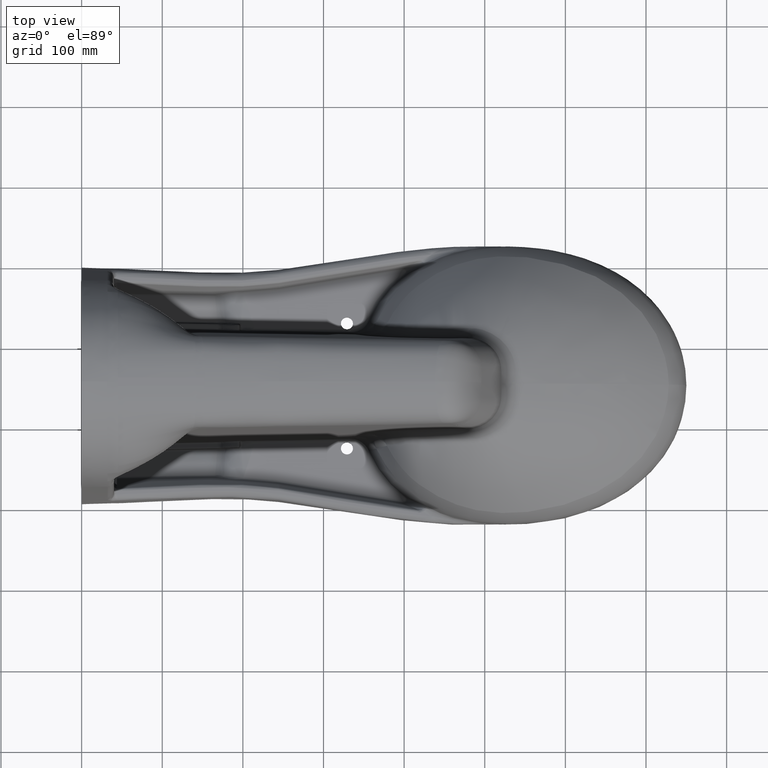
[diagram: clean part render]
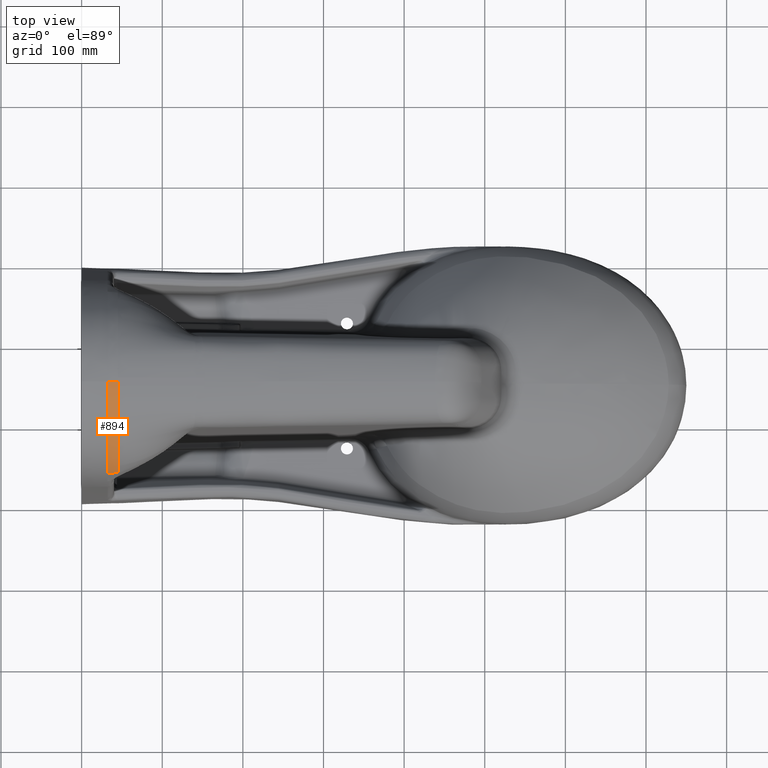
[diagram: same view with one face highlighted and labeled with its STEP entity id]
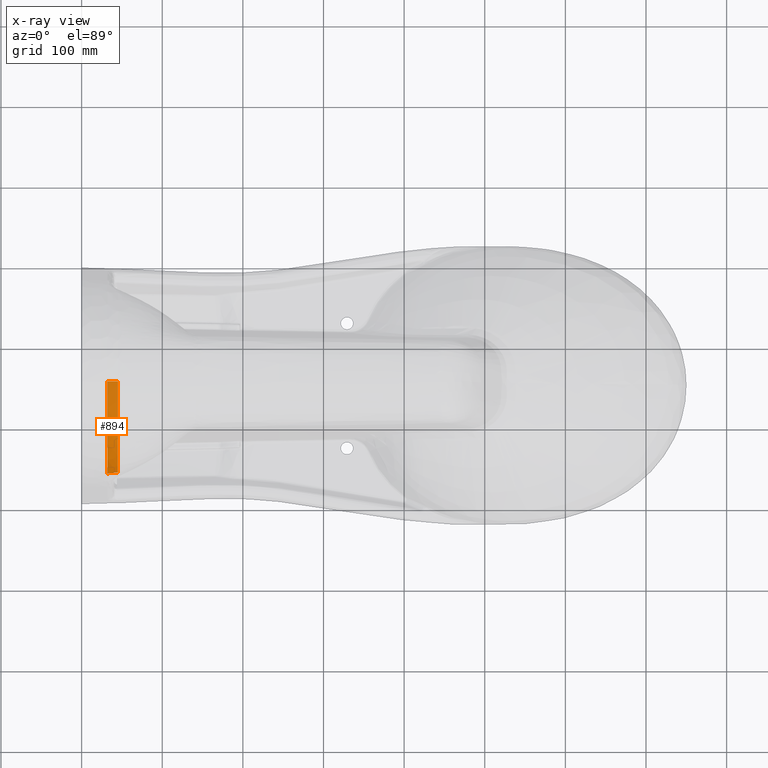
[diagram: x-ray of the same camera — body ghosted, the highlighted face saturated]
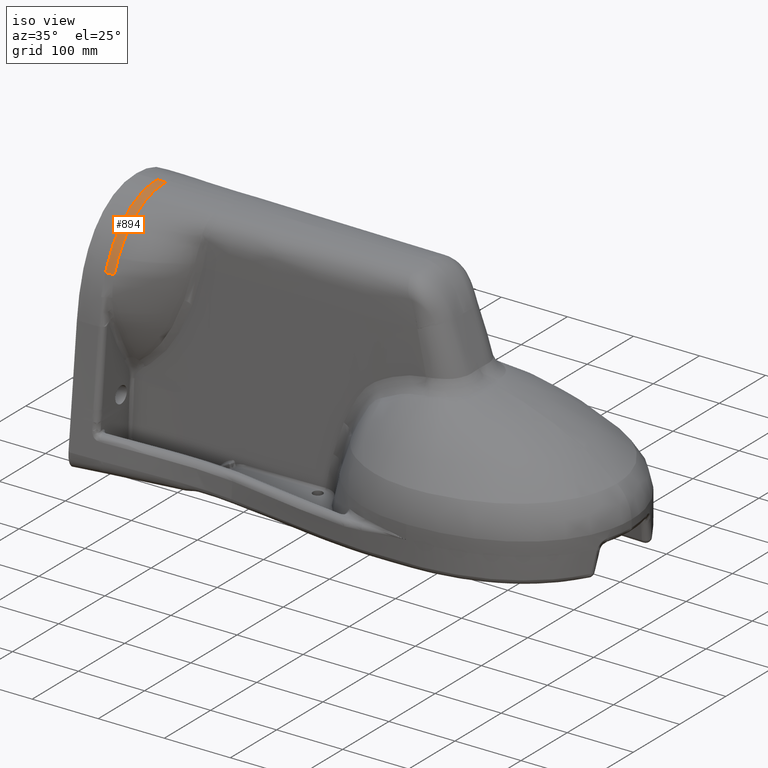
[diagram: same view with one face highlighted and labeled with its STEP entity id]
A machine part, top view. The second image highlights one B-rep face of the part: STEP entity #894.
The next image is the same camera in x-ray: the body ghosted, the highlighted face saturated — about 0% of this face is hidden behind the body in this view.
A second angle (iso view) of the same face is appended — the face is thin or edge-on in the first view.
In plain terms, the highlighted face is a freeform B-spline surface patch.
Its self-contained STEP definition (entity closure, byte-faithful):
#894=ADVANCED_FACE('',(#1476),#1150,.T.);
#1150=B_SPLINE_SURFACE_WITH_KNOTS('',3,3,((#41823,#41824,#41825,#41826,
#41827),(#41828,#41829,#41830,#41831,#41832),(#41833,#41834,#41835,#41836,
#41837),(#41838,#41839,#41840,#41841,#41842),(#41843,#41844,#41845,#41846,
#41847),(#41848,#41849,#41850,#41851,#41852),(#41853,#41854,#41855,#41856,
#41857),(#41858,#41859,#41860,#41861,#41862),(#41863,#41864,#41865,#41866,
#41867),(#41868,#41869,#41870,#41871,#41872),(#41873,#41874,#41875,#41876,
#41877),(#41878,#41879,#41880,#41881,#41882),(#41883,#41884,#41885,#41886,
#41887),(#41888,#41889,#41890,#41891,#41892),(#41893,#41894,#41895,#41896,
#41897),(#41898,#41899,#41900,#41901,#41902),(#41903,#41904,#41905,#41906,
#41907),(#41908,#41909,#41910,#41911,#41912),(#41913,#41914,#41915,#41916,
#41917),(#41918,#41919,#41920,#41921,#41922),(#41923,#41924,#41925,#41926,
#41927)),.UNSPECIFIED.,.F.,.F.,.F.,(4,1,1,1,1,1,1,1,1,1,1,1,1,1,1,1,1,1,
4),(4,1,4),(0.,0.03125,0.046875,0.0625,0.125,0.1875,0.25,0.3125,0.375,0.5,
0.5625,0.625,0.6875,0.75,0.8125,0.875,0.9375,0.96875,1.),(0.,0.5,1.),
 .UNSPECIFIED.);
#1476=FACE_OUTER_BOUND('',#1901,.T.);
#1901=EDGE_LOOP('',(#3408,#3409,#3410,#3411,#3412));
#3408=ORIENTED_EDGE('',*,*,#5442,.F.);
#3409=ORIENTED_EDGE('',*,*,#4764,.T.);
#3410=ORIENTED_EDGE('',*,*,#5443,.F.);
#3411=ORIENTED_EDGE('',*,*,#5444,.T.);
#3412=ORIENTED_EDGE('',*,*,#5115,.T.);
#4150=VERTEX_POINT('',#7491);
#4152=VERTEX_POINT('',#7504);
#4386=VERTEX_POINT('',#20594);
#4387=VERTEX_POINT('',#20600);
#4561=VERTEX_POINT('',#41817);
#4764=EDGE_CURVE('',#4150,#4152,#5791,.T.);
#5115=EDGE_CURVE('',#4387,#4386,#6055,.T.);
#5442=EDGE_CURVE('',#4150,#4386,#6274,.T.);
#5443=EDGE_CURVE('',#4561,#4152,#6275,.T.);
#5444=EDGE_CURVE('',#4561,#4387,#6276,.T.);
#5791=B_SPLINE_CURVE_WITH_KNOTS('',3,(#7505,#7506,#7507,#7508,#7509),
 .UNSPECIFIED.,.F.,.F.,(4,1,4),(0.,0.5,1.),.UNSPECIFIED.);
#6055=B_SPLINE_CURVE_WITH_KNOTS('',3,(#20595,#20596,#20597,#20598,#20599),
 .UNSPECIFIED.,.F.,.F.,(4,1,4),(0.,0.5,1.),.UNSPECIFIED.);
#6274=B_SPLINE_CURVE_WITH_KNOTS('',3,(#41757,#41758,#41759,#41760,#41761,
#41762,#41763,#41764,#41765,#41766,#41767,#41768,#41769,#41770),
 .UNSPECIFIED.,.F.,.F.,(4,1,1,1,1,1,1,1,1,1,1,4),(0.,0.0846163404566304,
0.176154706410967,0.267693072365304,0.359231438319641,0.450769804273978,
0.542308170228315,0.633846536182652,0.725384902136989,0.816923268091326,
0.908461634045663,1.),.UNSPECIFIED.);
#6275=B_SPLINE_CURVE_WITH_KNOTS('',3,(#41771,#41772,#41773,#41774,#41775,
#41776,#41777,#41778,#41779,#41780,#41781,#41782,#41783,#41784,#41785,#41786,
#41787,#41788,#41789,#41790,#41791,#41792,#41793,#41794,#41795,#41796,#41797,
#41798,#41799,#41800,#41801,#41802,#41803,#41804,#41805,#41806,#41807,#41808,
#41809,#41810,#41811,#41812,#41813,#41814,#41815,#41816),.UNSPECIFIED.,
 .F.,.F.,(4,2,2,2,2,2,2,2,2,2,1,1,2,2,2,2,2,2,2,1,1,2,2,2,4),(0.,0.124999999999881,
0.187499999999821,0.218749999999791,0.234374999999776,0.249999999999761,
0.37499999999964,0.437499999999579,0.468749999999548,0.484374999999534,
0.492187499999526,0.496093749999521,0.498046874999519,0.499999999999517,
0.624999999999616,0.687499999999665,0.718749999999689,0.734374999999702,
0.742187499999708,0.746093749999711,0.748046874999712,0.749023437499712,
0.749999999999712,0.874999999999856,1.),.UNSPECIFIED.);
#6276=B_SPLINE_CURVE_WITH_KNOTS('',3,(#41818,#41819,#41820,#41821,#41822),
 .UNSPECIFIED.,.F.,.F.,(4,1,4),(0.,0.065085000679331,1.),.UNSPECIFIED.);
#7491=CARTESIAN_POINT('',(32.0711409136262,40.6991290688186,254.616242603027));
#7504=CARTESIAN_POINT('',(45.0002164847219,41.9455331561482,254.61593767935));
#7505=CARTESIAN_POINT('',(32.0711405541962,40.6988021979625,254.616368293161));
#7506=CARTESIAN_POINT('',(34.2399878995843,40.7214590894807,254.616369769291));
#7507=CARTESIAN_POINT('',(38.5785005924418,40.8661706958779,254.616224616983));
#7508=CARTESIAN_POINT('',(42.8844870985646,41.4680564288696,254.616069426711));
#7509=CARTESIAN_POINT('',(45.0003552028506,41.9451697982852,254.616060864872));
#20594=CARTESIAN_POINT('',(32.0711392233909,153.525,338.620104444878));
#20595=CARTESIAN_POINT('',(44.9985435816259,153.525,338.620104444878));
#20596=CARTESIAN_POINT('',(42.8439761885891,153.525,338.620105853771));
#20597=CARTESIAN_POINT('',(38.5348414025082,153.525,338.620103740432));
#20598=CARTESIAN_POINT('',(34.2257066164281,153.525,338.620104444878));
#20599=CARTESIAN_POINT('',(32.0711392233909,153.525,338.620104444878));
#20600=CARTESIAN_POINT('',(44.9985435816259,153.525,338.620104444878));
#41757=CARTESIAN_POINT('',(32.0711397441766,40.6994559484828,254.616116915158));
#41758=CARTESIAN_POINT('',(32.0711397295455,42.2220162009878,258.575789393538));
#41759=CARTESIAN_POINT('',(32.0711396990827,45.6718731273508,266.711771698158));
#41760=CARTESIAN_POINT('',(32.0711396527762,51.8882292941484,278.620980744486));
#41761=CARTESIAN_POINT('',(32.071139605253,59.3799702337231,290.19163692479));
#41762=CARTESIAN_POINT('',(32.0711395576998,68.007508932114,300.945795690077));
#41763=CARTESIAN_POINT('',(32.071139510106,77.764033306794,310.690938170638));
#41764=CARTESIAN_POINT('',(32.0711394624659,88.5776580886322,319.251429769445));
#41765=CARTESIAN_POINT('',(32.0711394147737,100.347932584325,326.444585382449));
#41766=CARTESIAN_POINT('',(32.0711393670238,112.931060316458,332.101232857567));
#41767=CARTESIAN_POINT('',(32.0711393192122,126.138237803026,336.091392273029));
#41768=CARTESIAN_POINT('',(32.0711392713369,139.748009792469,338.349975834694));
#41769=CARTESIAN_POINT('',(32.0711392393783,148.936611215324,338.711052031488));
#41770=CARTESIAN_POINT('',(32.0711392233891,153.525,338.620104444878));
#41771=CARTESIAN_POINT('',(44.9985435816502,148.524999895196,338.620143607198));
#41772=CARTESIAN_POINT('',(44.9985456288554,144.498976199608,338.620206668383));
#41773=CARTESIAN_POINT('',(45.0019319987333,139.578634123107,338.384431536113));
#41774=CARTESIAN_POINT('',(45.0016976851732,130.70509147136,336.997135005382));
#41775=CARTESIAN_POINT('',(45.0008596528442,127.495179015842,336.35917333292));
#41776=CARTESIAN_POINT('',(44.9995634027991,122.255112733824,334.995233156037));
#41777=CARTESIAN_POINT('',(44.9991347504187,120.437338940277,334.472205919435));
#41778=CARTESIAN_POINT('',(44.9989718680977,117.596255666197,333.56152180713));
#41779=CARTESIAN_POINT('',(44.9989924362843,116.629918256833,333.236716842376));
#41780=CARTESIAN_POINT('',(44.9987999542336,114.660777252935,332.537725000184));
#41781=CARTESIAN_POINT('',(44.9986218822517,113.628670738094,332.152321754027));
#41782=CARTESIAN_POINT('',(44.9972021853765,104.717283393644,328.657217996972));
#41783=CARTESIAN_POINT('',(44.9908698291719,98.1215723141717,324.891307548515));
#41784=CARTESIAN_POINT('',(44.9930635991383,90.5448042531518,319.88079219915));
#41785=CARTESIAN_POINT('',(44.9948942420098,88.3884929538758,318.309691815881));
#41786=CARTESIAN_POINT('',(44.9974357569911,85.6666995864879,316.223028864469));
#41787=CARTESIAN_POINT('',(44.9982406145077,84.8446310335663,315.571901233802));
#41788=CARTESIAN_POINT('',(44.9991175581198,83.7333392811918,314.672173594478));
#41789=CARTESIAN_POINT('',(44.9993547789949,83.3832130168148,314.38505890512));
#41790=CARTESIAN_POINT('',(44.9995952075118,82.8877663751173,313.974606360222));
#41791=CARTESIAN_POINT('',(44.9996865774444,82.6474789365784,313.774432752088));
#41792=CARTESIAN_POINT('',(44.9997357301395,82.3800059106306,313.549938925972));
#41793=CARTESIAN_POINT('',(44.9997437590484,82.2681152381656,313.455684671916));
#41794=CARTESIAN_POINT('',(44.9997461345872,82.1941287691462,313.39328563812));
#41795=CARTESIAN_POINT('',(44.9997444637186,82.1301844634616,313.339263593928));
#41796=CARTESIAN_POINT('',(44.9997146253002,81.5366013740305,312.837449458059));
#41797=CARTESIAN_POINT('',(44.983744556993,78.7898059772971,310.60424691419));
#41798=CARTESIAN_POINT('',(44.9759707065863,72.2056156518497,304.047264890492));
#41799=CARTESIAN_POINT('',(44.9778313145837,69.6060511762106,301.319949099785));
#41800=CARTESIAN_POINT('',(44.9857424052622,65.3293195513997,296.328768348467));
#41801=CARTESIAN_POINT('',(44.9890908104183,63.8420466623942,294.515364705563));
#41802=CARTESIAN_POINT('',(44.9930644203846,61.5579096271235,291.563947885992));
#41803=CARTESIAN_POINT('',(44.9941972278923,60.7877360363261,290.541631214321));
#41804=CARTESIAN_POINT('',(44.9951698511694,59.6249435262925,288.950049850684));
#41805=CARTESIAN_POINT('',(44.9953716282258,59.2360960719086,288.409842548731));
#41806=CARTESIAN_POINT('',(44.9954230722803,58.6517069442233,287.585010363078));
#41807=CARTESIAN_POINT('',(44.9953858508911,58.3592334167659,287.168964423696));
#41808=CARTESIAN_POINT('',(44.9952159956894,58.0176972742572,286.677230134787));
#41809=CARTESIAN_POINT('',(44.9951142656342,57.8712754051006,286.465127582452));
#41810=CARTESIAN_POINT('',(44.9950398080419,57.773651971205,286.323423921351));
#41811=CARTESIAN_POINT('',(44.9949796807211,57.70309719831,286.220737359678));
#41812=CARTESIAN_POINT('',(44.9918331451777,54.2096599487572,281.129101242971));
#41813=CARTESIAN_POINT('',(45.0024946483158,51.150637767643,275.926510618833));
#41814=CARTESIAN_POINT('',(45.003034876765,45.9422057750401,265.376259653575));
#41815=CARTESIAN_POINT('',(44.9977286301671,43.7025430183648,260.056318278966));
#41816=CARTESIAN_POINT('',(45.0003080201554,41.9449969446685,254.616116685688));
#41817=CARTESIAN_POINT('',(44.9986215535669,148.525002866496,338.619284994133));
#41818=CARTESIAN_POINT('',(44.9986995254743,148.525005782917,338.618426381249));
#41819=CARTESIAN_POINT('',(44.9986867808466,148.633478778194,338.618793669326));
#41820=CARTESIAN_POINT('',(44.9985036848706,150.300125522336,338.623527269079));
#41821=CARTESIAN_POINT('',(44.9985430901317,151.96682928521,338.620105029053));
#41822=CARTESIAN_POINT('',(44.9985435816236,153.525,338.620104444878));
#41823=CARTESIAN_POINT('',(32.0711392233909,153.525,338.620104444878));
#41824=CARTESIAN_POINT('',(34.2257066164281,153.525,338.620104444878));
#41825=CARTESIAN_POINT('',(38.5348414025082,153.525,338.620103740432));
#41826=CARTESIAN_POINT('',(42.8439761885891,153.525,338.620105853771));
#41827=CARTESIAN_POINT('',(44.9985435816259,153.525,338.620104444878));
#41828=CARTESIAN_POINT('',(32.0711392204118,151.958574036949,338.651150477298));
#41829=CARTESIAN_POINT('',(34.2258587303426,151.958113763736,338.650769112415));
#41830=CARTESIAN_POINT('',(38.5352869083979,151.958032836507,338.635213609189));
#41831=CARTESIAN_POINT('',(42.8443758596537,151.962634888271,338.620074341275));
#41832=CARTESIAN_POINT('',(44.9985430901341,151.96682928521,338.620105029053));
#41833=CARTESIAN_POINT('',(32.0711392159413,149.607650392238,338.649717235053));
#41834=CARTESIAN_POINT('',(34.2260544882129,149.606272791179,338.648725876383));
#41835=CARTESIAN_POINT('',(38.5359270300753,149.606540349632,338.63644080979));
#41836=CARTESIAN_POINT('',(42.8449523802856,149.618873022727,338.625027751413));
#41837=CARTESIAN_POINT('',(44.9984878292795,149.629489764208,338.624904284351));
#41838=CARTESIAN_POINT('',(32.0711392099773,146.474976907187,338.550770178255));
#41839=CARTESIAN_POINT('',(34.2264505603182,146.47308786395,338.548924210185));
#41840=CARTESIAN_POINT('',(38.5370740440923,146.473021325382,338.578189327218));
#41841=CARTESIAN_POINT('',(42.8461712524635,146.494078901892,338.609610752081));
#41842=CARTESIAN_POINT('',(44.9989975904767,146.513186583951,338.609917063286));
#41843=CARTESIAN_POINT('',(32.0711392010275,141.780088441588,338.304797783227));
#41844=CARTESIAN_POINT('',(34.2271410141566,141.777796853887,338.301660952414));
#41845=CARTESIAN_POINT('',(38.5388443437289,141.775571663459,338.376054958842));
#41846=CARTESIAN_POINT('',(42.8479897348527,141.808405455891,338.455016518302));
#41847=CARTESIAN_POINT('',(44.9998357146596,141.840960534748,338.456443344052));
#41848=CARTESIAN_POINT('',(32.0711391875895,134.761576303417,337.568085868724));
#41849=CARTESIAN_POINT('',(34.2281486897338,134.759462652706,337.563013346687));
#41850=CARTESIAN_POINT('',(38.5414474851367,134.751504481064,337.667224061742));
#41851=CARTESIAN_POINT('',(42.8505784684992,134.799305959382,337.7807977638));
#41852=CARTESIAN_POINT('',(45.0008635268061,134.852612252542,337.785084530421));
#41853=CARTESIAN_POINT('',(32.071139169643,125.525749711646,335.784759129683));
#41854=CARTESIAN_POINT('',(34.2290513549821,125.52481424445,335.777339352257));
#41855=CARTESIAN_POINT('',(38.5442187258236,125.512044330266,335.884192184079));
#41856=CARTESIAN_POINT('',(42.8529871108274,125.581430435275,336.008210426877));
#41857=CARTESIAN_POINT('',(45.0006653626341,125.662141428141,336.017952626247));
#41858=CARTESIAN_POINT('',(32.0711391516664,116.483164851403,333.186474057418));
#41859=CARTESIAN_POINT('',(34.2296894458527,116.484268906088,333.177175453839));
#41860=CARTESIAN_POINT('',(38.5464598037468,116.47718062969,333.256993175478));
#41861=CARTESIAN_POINT('',(42.8547172586735,116.573411409739,333.371478877346));
#41862=CARTESIAN_POINT('',(44.9996413862995,116.677155108697,333.396845083985));
#41863=CARTESIAN_POINT('',(32.0711391336609,107.700972812894,329.807044798322));
#41864=CARTESIAN_POINT('',(34.2299198145809,107.7043543694,329.796338013691));
#41865=CARTESIAN_POINT('',(38.5474545144917,107.714064668844,329.836417797454));
#41866=CARTESIAN_POINT('',(42.8547207958129,107.847783250379,329.919883086864));
#41867=CARTESIAN_POINT('',(44.9968414786525,107.974323823758,329.952558902037));
#41868=CARTESIAN_POINT('',(32.0711391096165,96.4262225216586,324.303529536122));
#41869=CARTESIAN_POINT('',(34.2302926248276,96.4322247581963,324.291311509961));
#41870=CARTESIAN_POINT('',(38.5484085986236,96.4768085282225,324.272247469049));
#41871=CARTESIAN_POINT('',(42.8545089846476,96.6784442738157,324.292663769188));
#41872=CARTESIAN_POINT('',(44.9935509113988,96.840422749978,324.319923530455));
#41873=CARTESIAN_POINT('',(32.0711390851418,85.9311380261815,317.372140834266));
#41874=CARTESIAN_POINT('',(34.232292075796,85.9378798636038,317.35791570751));
#41875=CARTESIAN_POINT('',(38.5523208693256,86.0345271345597,317.278031247769));
#41876=CARTESIAN_POINT('',(42.8593492421285,86.3274880318485,317.22735165847));
#41877=CARTESIAN_POINT('',(44.9977013901706,86.5292412889362,317.242329200756));
#41878=CARTESIAN_POINT('',(32.0711390620801,76.3802532617974,309.243502580597));
#41879=CARTESIAN_POINT('',(34.2342098156197,76.3864101621006,309.225868627997));
#41880=CARTESIAN_POINT('',(38.5550238145329,76.5260754187839,309.112938042678));
#41881=CARTESIAN_POINT('',(42.8624839123042,76.8950955882363,309.029501340231));
#41882=CARTESIAN_POINT('',(45.0006959216197,77.1290787239162,309.041359421327));
#41883=CARTESIAN_POINT('',(32.0711390462364,69.7127952175215,302.606470966356));
#41884=CARTESIAN_POINT('',(34.2351445237297,69.7190518376315,302.586476488568));
#41885=CARTESIAN_POINT('',(38.5552292184549,69.88506050599,302.460683243682));
#41886=CARTESIAN_POINT('',(42.8625630158362,70.2930332622211,302.376906068614));
#41887=CARTESIAN_POINT('',(45.0010344370055,70.5395554397679,302.398926075633));
#41888=CARTESIAN_POINT('',(32.0711390325915,63.5646483657235,295.486958280043));
#41889=CARTESIAN_POINT('',(34.235278867385,63.5722048979052,295.465839144641));
#41890=CARTESIAN_POINT('',(38.552378678966,63.7586267455474,295.339377546148));
#41891=CARTESIAN_POINT('',(42.8587448428576,64.172453534288,295.285999580231));
#41892=CARTESIAN_POINT('',(44.9980895550838,64.4055466240891,295.337962756563));
#41893=CARTESIAN_POINT('',(32.0711390106744,57.9435268010202,287.943076496023));
#41894=CARTESIAN_POINT('',(34.2354827134202,57.9536959332245,287.922927882184));
#41895=CARTESIAN_POINT('',(38.5503707369839,58.1455029525529,287.813408773696));
#41896=CARTESIAN_POINT('',(42.8557367097801,58.5383099998822,287.806419656757));
#41897=CARTESIAN_POINT('',(44.9952185709824,58.7474409235643,287.888799977794));
#41898=CARTESIAN_POINT('',(32.0711389700137,52.8571446180283,280.032937588661));
#41899=CARTESIAN_POINT('',(34.2365280411505,52.8706864015698,280.015831294733));
#41900=CARTESIAN_POINT('',(38.551428814827,53.0491177136181,279.937591714997));
#41901=CARTESIAN_POINT('',(42.8563570261434,53.4088230870627,279.976328660872));
#41902=CARTESIAN_POINT('',(44.9951554282463,53.601430842434,280.076198100046));
#41903=CARTESIAN_POINT('',(32.0711391996755,48.2884148861985,271.811635559271));
#41904=CARTESIAN_POINT('',(34.2375923542172,48.3057774859535,271.799894528736));
#41905=CARTESIAN_POINT('',(38.5521207441014,48.4742070648406,271.754068366985));
#41906=CARTESIAN_POINT('',(42.8566085818451,48.8416192313127,271.810051320722));
#41907=CARTESIAN_POINT('',(44.9951247616748,49.0555864760428,271.900118877335));
#41908=CARTESIAN_POINT('',(32.0711398572173,44.8982780435172,264.747159600847));
#41909=CARTESIAN_POINT('',(34.2380627159324,44.9181760271253,264.740218363968));
#41910=CARTESIAN_POINT('',(38.5561240121205,45.0605091043712,264.724566707944));
#41911=CARTESIAN_POINT('',(42.860404343857,45.4817172463898,264.771105467215));
#41912=CARTESIAN_POINT('',(44.9945845523008,45.7779708079577,264.826354337429));
#41913=CARTESIAN_POINT('',(32.0711403343702,42.4224723147351,258.989377651854));
#41914=CARTESIAN_POINT('',(34.2388328368094,42.4440435197999,258.986353851335));
#41915=CARTESIAN_POINT('',(38.5666564353739,42.572201139056,258.986430426198));
#41916=CARTESIAN_POINT('',(42.871679898854,43.0741210999135,259.012952755499));
#41917=CARTESIAN_POINT('',(44.9967583697906,43.4668219244043,259.036374577328));
#41918=CARTESIAN_POINT('',(32.0711405018906,41.2610075296411,256.078725179623));
#41919=CARTESIAN_POINT('',(34.2395860981833,41.2832888860229,256.077635225111));
#41920=CARTESIAN_POINT('',(38.57467771983,41.416344115999,256.079912840621));
#41921=CARTESIAN_POINT('',(42.8805298307823,41.9780819927154,256.090508948485));
#41922=CARTESIAN_POINT('',(44.9994959146628,42.4263566559806,256.097737442293));
#41923=CARTESIAN_POINT('',(32.0711405541962,40.6988021979625,254.616368293161));
#41924=CARTESIAN_POINT('',(34.2399878995843,40.7214590894807,254.616369769291));
#41925=CARTESIAN_POINT('',(38.5785005924418,40.8661706958779,254.616224616983));
#41926=CARTESIAN_POINT('',(42.8844870985646,41.4680564288696,254.616069426711));
#41927=CARTESIAN_POINT('',(45.0003552028506,41.9451697982852,254.616060864872));